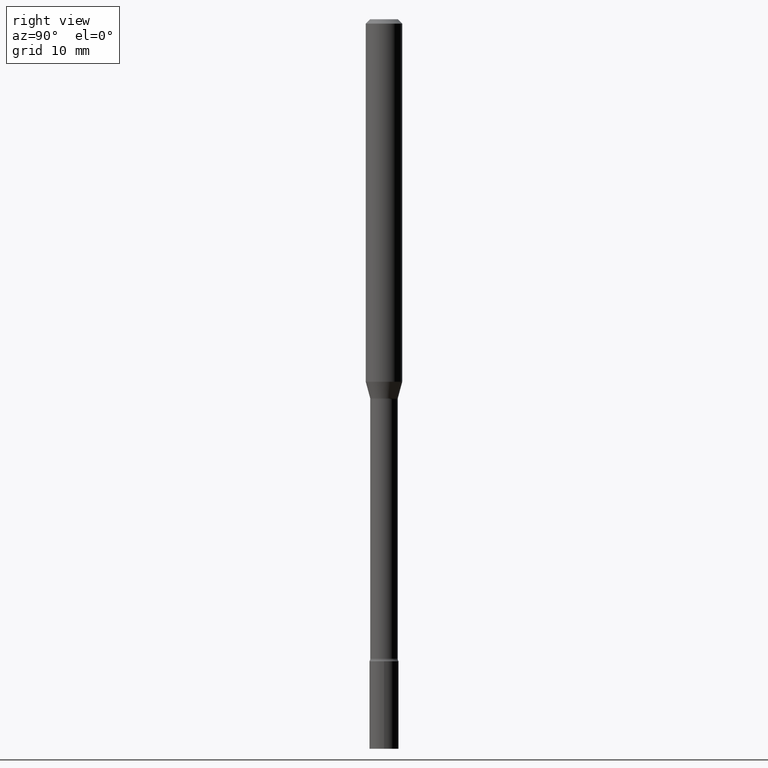
[diagram: clean part render]
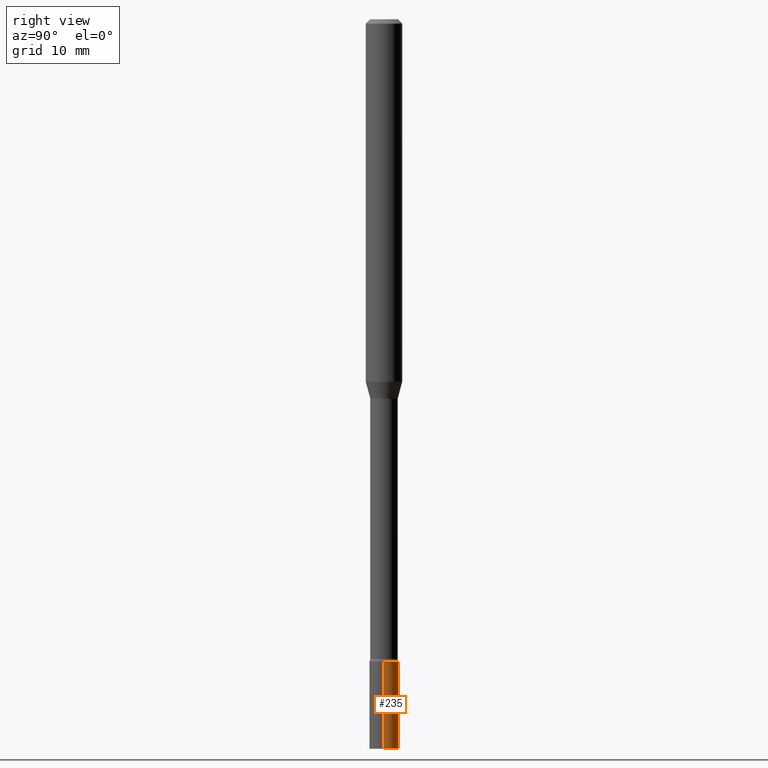
[diagram: same view with one face highlighted and labeled with its STEP entity id]
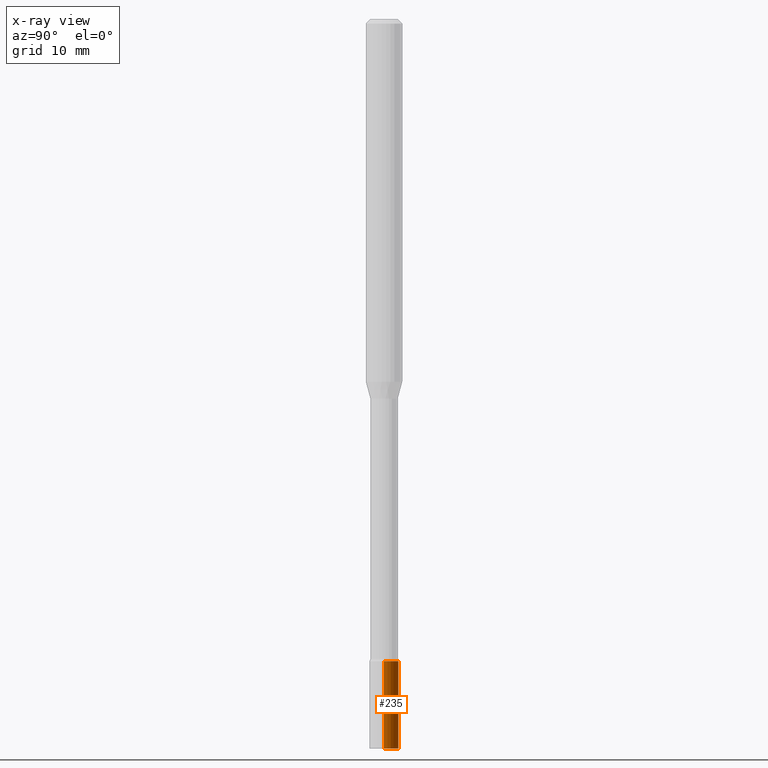
[diagram: x-ray of the same camera — body ghosted, the highlighted face saturated]
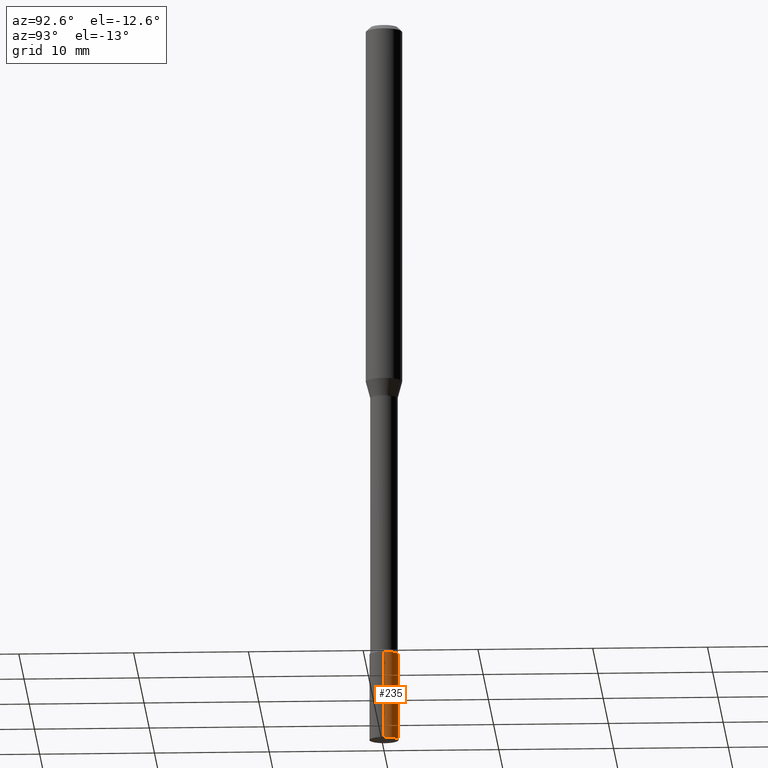
[diagram: same view with one face highlighted and labeled with its STEP entity id]
A machine part, right view. The second image highlights one B-rep face of the part: STEP entity #235.
The next image is the same camera in x-ray: the body ghosted, the highlighted face saturated — about 0% of this face is hidden behind the body in this view.
A second angle (auxiliary view) of the same face is appended — the face is thin or edge-on in the first view.
In plain terms, the highlighted cylindrical surface (edge-blend (fillet) strip) has radius 1.27 mm, axis along (-0, 0, 1).
Its self-contained STEP definition (entity closure, byte-faithful):
#7 = DIRECTION ( 'NONE',  ( -2.445468806185136877E-29, 3.491481338843145188E-15, 1.000000000000000000 ) ) ;
#39 = CARTESIAN_POINT ( 'NONE',  ( -0.05000000000000000278, -7.849709778401342953E-15, -2.200000000000000178 ) ) ;
#44 = EDGE_LOOP ( 'NONE', ( #256, #247, #284, #330 ) ) ;
#47 = DIRECTION ( 'NONE',  ( -2.445468806185136597E-29, 3.491481338843145583E-15, 1.000000000000000000 ) ) ;
#49 = AXIS2_PLACEMENT_3D ( 'NONE', #466, #293, #148 ) ;
#87 = CARTESIAN_POINT ( 'NONE',  ( 0.05000000000000000278, -3.491481338843133848E-16, 2.438088387897968247E-30 ) ) ;
#97 = CARTESIAN_POINT ( 'NONE',  ( 6.113672015462842613E-29, -8.728703347107864943E-15, -2.500000000000000000 ) ) ;
#106 = EDGE_CURVE ( 'NONE', #463, #238, #456, .T. ) ;
#118 = AXIS2_PLACEMENT_3D ( 'NONE', #97, #47, #409 ) ;
#142 = DIRECTION ( 'NONE',  ( -2.445468806185136877E-29, 3.491481338843145188E-15, 1.000000000000000000 ) ) ;
#148 = DIRECTION ( 'NONE',  ( 1.000000000000000000, -6.982962677686274599E-15, 0.000000000000000000 ) ) ;
#158 = AXIS2_PLACEMENT_3D ( 'NONE', #505, #224, #290 ) ;
#169 = FACE_OUTER_BOUND ( 'NONE', #44, .T. ) ;
#191 = VECTOR ( 'NONE', #142, 39.37007874015748143 ) ;
#199 = EDGE_CURVE ( 'NONE', #463, #503, #277, .T. ) ;
#224 = DIRECTION ( 'NONE',  ( -2.445468806185136597E-29, 3.491481338843145583E-15, 1.000000000000000000 ) ) ;
#231 = VECTOR ( 'NONE', #7, 39.37007874015748143 ) ;
#235 = ADVANCED_FACE ( 'NONE', ( #169 ), #421, .T. ) ;
#238 = VERTEX_POINT ( 'NONE', #344 ) ;
#247 = ORIENTED_EDGE ( 'NONE', *, *, #283, .T. ) ;
#256 = ORIENTED_EDGE ( 'NONE', *, *, #199, .T. ) ;
#271 = CARTESIAN_POINT ( 'NONE',  ( 0.05000000000000000278, -9.077851480992178278E-15, -2.500000000000000000 ) ) ;
#277 = CIRCLE ( 'NONE', #118, 0.05000000000000000278 ) ;
#283 = EDGE_CURVE ( 'NONE', #503, #388, #334, .T. ) ;
#284 = ORIENTED_EDGE ( 'NONE', *, *, #303, .F. ) ;
#290 = DIRECTION ( 'NONE',  ( 1.000000000000000000, -6.982962677686267499E-15, 4.876176775795936353E-29 ) ) ;
#293 = DIRECTION ( 'NONE',  ( -2.445468806185136597E-29, 3.491481338843145583E-15, 1.000000000000000000 ) ) ;
#303 = EDGE_CURVE ( 'NONE', #238, #388, #480, .T. ) ;
#330 = ORIENTED_EDGE ( 'NONE', *, *, #106, .F. ) ;
#334 = LINE ( 'NONE', #470, #191 ) ;
#344 = CARTESIAN_POINT ( 'NONE',  ( 0.05000000000000000278, -8.030407079339233538E-15, -2.200000000000000178 ) ) ;
#356 = CARTESIAN_POINT ( 'NONE',  ( -0.05000000000000000278, -7.849709778401342953E-15, -2.500000000000000000 ) ) ;
#388 = VERTEX_POINT ( 'NONE', #39 ) ;
#409 = DIRECTION ( 'NONE',  ( 1.000000000000000000, -6.982962677686274599E-15, 0.000000000000000000 ) ) ;
#421 = CYLINDRICAL_SURFACE ( 'NONE', #158, 0.05000000000000000278 ) ;
#456 = LINE ( 'NONE', #87, #231 ) ;
#463 = VERTEX_POINT ( 'NONE', #271 ) ;
#466 = CARTESIAN_POINT ( 'NONE',  ( 5.380031373607300737E-29, -7.681258945454920203E-15, -2.200000000000000178 ) ) ;
#470 = CARTESIAN_POINT ( 'NONE',  ( -0.05000000000000000278, 3.552713678800501127E-16, -2.459467545127453311E-30 ) ) ;
#480 = CIRCLE ( 'NONE', #49, 0.05000000000000000278 ) ;
#503 = VERTEX_POINT ( 'NONE', #356 ) ;
#505 = CARTESIAN_POINT ( 'NONE',  ( 0.000000000000000000, 0.000000000000000000, 0.000000000000000000 ) ) ;